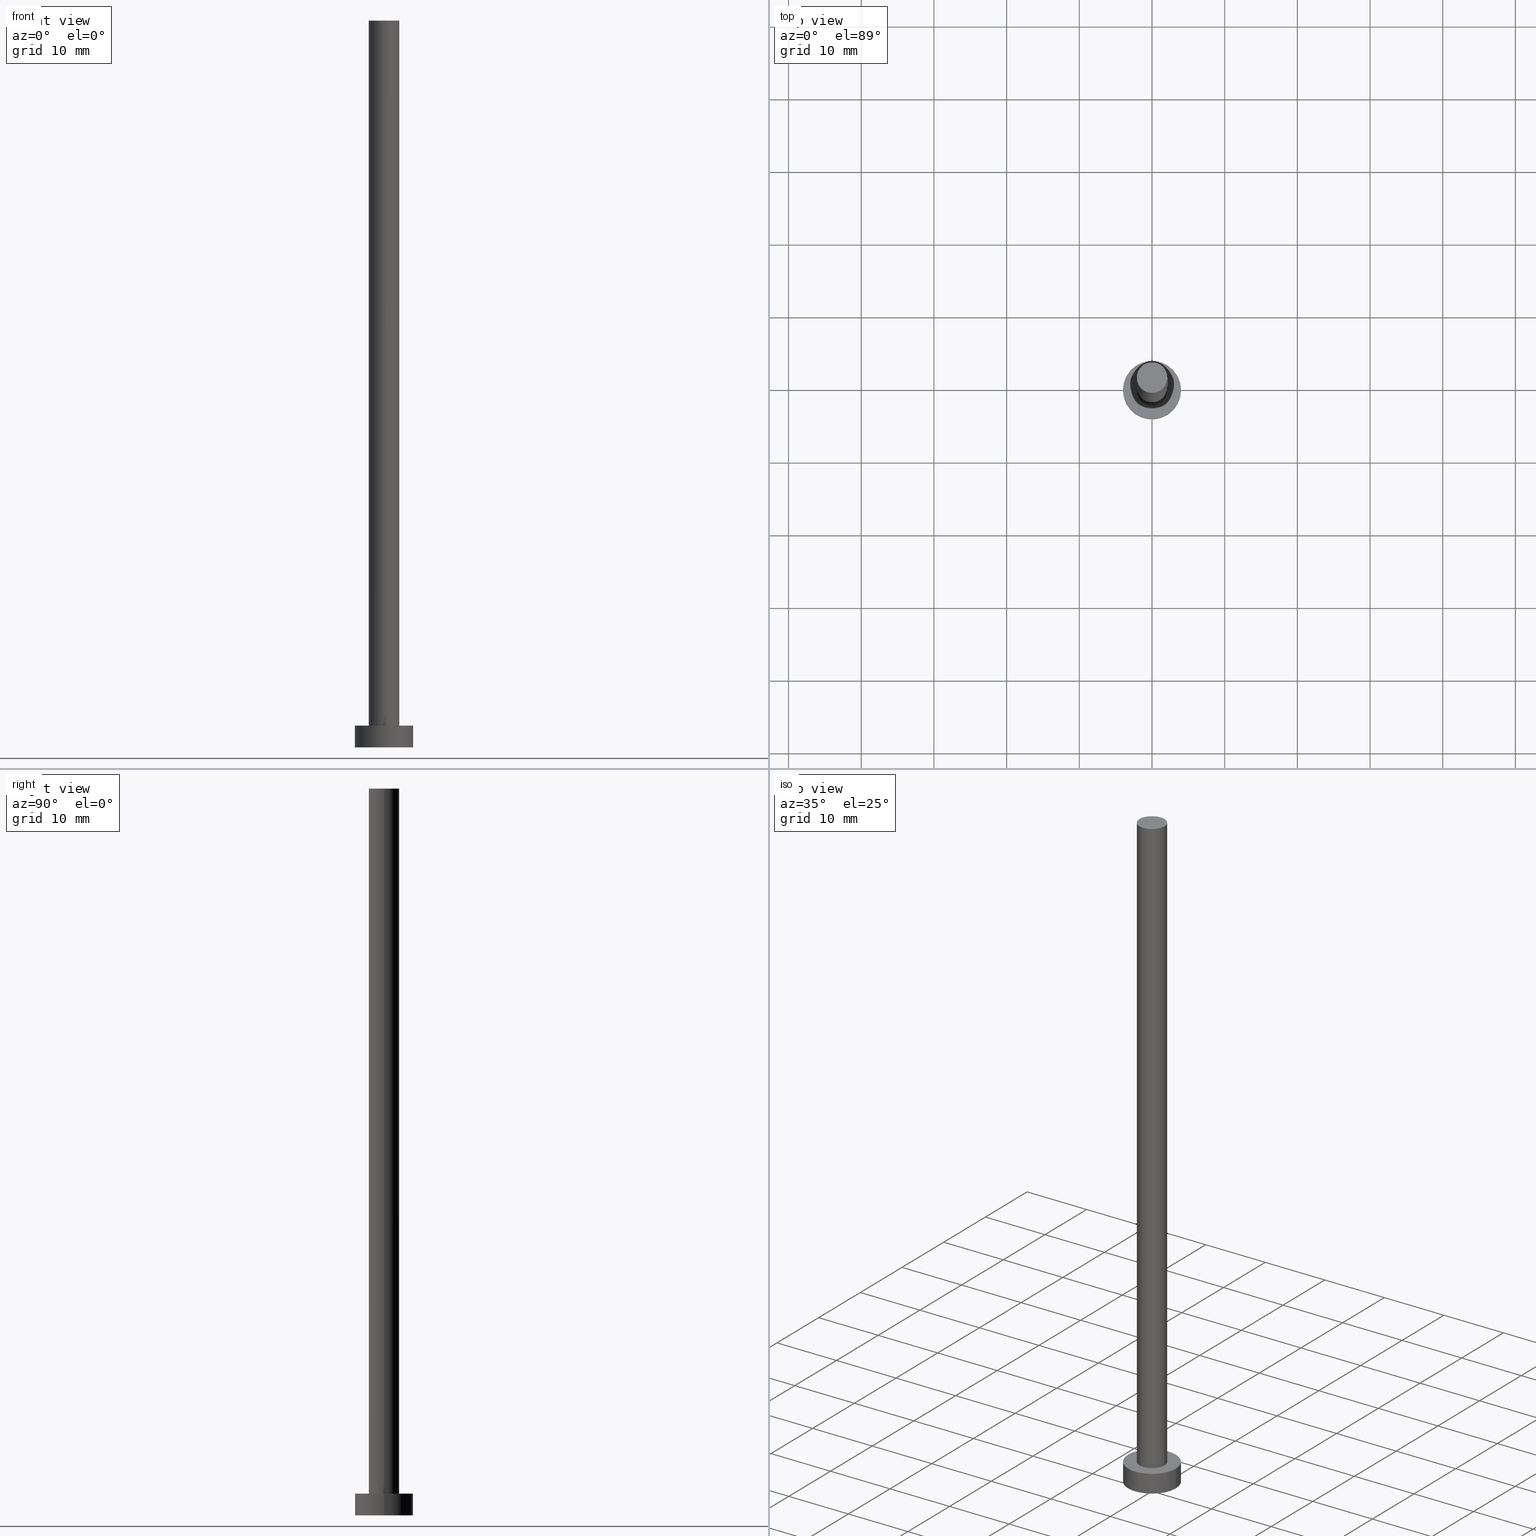
[diagram: canonical four-view strip — front | top / right | iso, engineering-drawing reading convention]
A machine part, canonical four-view strip (front | top / right | iso — engineering-drawing reading convention). The complete STEP part file that produces these views, byte-faithful:
ISO-10303-21;
HEADER;
FILE_DESCRIPTION (( 'STEP AP203' ),
    '1' );
FILE_NAME ('6c54.STEP',
    '2023-02-13T13:56:49',
    ( '' ),
    ( '' ),
    'SwSTEP 2.0',
    'SolidWorks 2019',
    '' );
FILE_SCHEMA (( 'CONFIG_CONTROL_DESIGN' ));
ENDSEC;

DATA;
#1 = CARTESIAN_POINT ( 'NONE',  ( 0.000000000000000000, 0.000000000000000000, 100.0000000000000000 ) ) ;
#2 = CARTESIAN_POINT ( 'NONE',  ( -2.100000000000000089, 0.000000000000000000, 100.0000000000000000 ) ) ;
#3 = ORIENTED_EDGE ( 'NONE', *, *, #5, .T. ) ;
#4 = AXIS2_PLACEMENT_3D ( 'NONE', #79, #110, #109 ) ;
#5 = EDGE_CURVE ( 'NONE', #100, #9, #98, .T. ) ;
#6 = CARTESIAN_POINT ( 'NONE',  ( 0.000000000000000000, 0.000000000000000000, 100.0000000000000000 ) ) ;
#7 = CARTESIAN_POINT ( 'NONE',  ( -4.000000000000000000, 0.000000000000000000, 3.000000000000000000 ) ) ;
#8 = CARTESIAN_POINT ( 'NONE',  ( 0.000000000000000000, 0.000000000000000000, 3.000000000000000000 ) ) ;
#9 = VERTEX_POINT ( 'NONE', #62 ) ;
#10 = ORIENTED_EDGE ( 'NONE', *, *, #180, .F. ) ;
#11 = APPROVAL ( #15, 'NEUR�EN�' ) ;
#12 = PERSON_AND_ORGANIZATION ( #95, #182 ) ;
#13 =( NAMED_UNIT ( * ) PLANE_ANGLE_UNIT ( ) SI_UNIT ( $, .RADIAN. ) );
#14 = CALENDAR_DATE ( 2023, 13, 2 ) ;
#15 = APPROVAL_STATUS ( 'not_yet_approved' ) ;
#16 = EDGE_CURVE ( 'NONE', #225, #96, #101, .T. ) ;
#17 = DIRECTION ( 'NONE',  ( -1.000000000000000000, 0.000000000000000000, 0.000000000000000000 ) ) ;
#18 = LOCAL_TIME ( 14, 56, 49.00000000000000000, #198 ) ;
#19 = APPROVAL_DATE_TIME ( #93, #50 ) ;
#20 = CARTESIAN_POINT ( 'NONE',  ( -2.100000000000000089, 0.000000000000000000, 3.000000000000000000 ) ) ;
#21 = LINE ( 'NONE', #86, #237 ) ;
#22 = ORIENTED_EDGE ( 'NONE', *, *, #47, .T. ) ;
#23 = DIRECTION ( 'NONE',  ( 0.000000000000000000, 0.000000000000000000, 1.000000000000000000 ) ) ;
#24 = CARTESIAN_POINT ( 'NONE',  ( -4.000000000000000000, 0.000000000000000000, 3.000000000000000000 ) ) ;
#25 = ORIENTED_EDGE ( 'NONE', *, *, #161, .T. ) ;
#26 = DIRECTION ( 'NONE',  ( 1.000000000000000000, 0.000000000000000000, 0.000000000000000000 ) ) ;
#27 = VERTEX_POINT ( 'NONE', #221 ) ;
#28 = UNCERTAINTY_MEASURE_WITH_UNIT (LENGTH_MEASURE( 1.000000000000000082E-05 ), #40, 'distance_accuracy_value', 'NONE');
#29 = APPROVAL ( #76, 'NEUR�EN�' ) ;
#30 = EDGE_LOOP ( 'NONE', ( #114, #119 ) ) ;
#31 = ADVANCED_BREP_SHAPE_REPRESENTATION ( '6c54', ( #185, #223 ), #251 ) ;
#32 = DATE_AND_TIME ( #14, #144 ) ;
#33 = CIRCLE ( 'NONE', #175, 2.100000000000000089 ) ;
#34 = LOCAL_TIME ( 14, 56, 49.00000000000000000, #208 ) ;
#35 = APPROVAL_DATE_TIME ( #194, #11 ) ;
#36 = PLANE ( 'NONE',  #4 ) ;
#37 = PERSON_AND_ORGANIZATION ( #95, #182 ) ;
#38 = CARTESIAN_POINT ( 'NONE',  ( 2.100000000000000089, 2.571758278209441464E-16, 100.0000000000000000 ) ) ;
#39 = CALENDAR_DATE ( 2023, 13, 2 ) ;
#40 =( LENGTH_UNIT ( ) NAMED_UNIT ( * ) SI_UNIT ( .MILLI., .METRE. ) );
#41 = CC_DESIGN_APPROVAL ( #50, ( #60 ) ) ;
#42 = DIRECTION ( 'NONE',  ( 0.000000000000000000, 0.000000000000000000, 1.000000000000000000 ) ) ;
#43 = DIRECTION ( 'NONE',  ( 0.000000000000000000, 0.000000000000000000, 1.000000000000000000 ) ) ;
#44 = CARTESIAN_POINT ( 'NONE',  ( 0.000000000000000000, 0.000000000000000000, 0.000000000000000000 ) ) ;
#45 = ORIENTED_EDGE ( 'NONE', *, *, #234, .T. ) ;
#46 = EDGE_LOOP ( 'NONE', ( #45, #25 ) ) ;
#47 = EDGE_CURVE ( 'NONE', #137, #200, #88, .T. ) ;
#48 = CARTESIAN_POINT ( 'NONE',  ( 2.100000000000000089, 2.571758278209441464E-16, 100.0000000000000000 ) ) ;
#49 = VECTOR ( 'NONE', #132, 1000.000000000000000 ) ;
#50 = APPROVAL ( #111, 'NEUR�EN�' ) ;
#51 = CIRCLE ( 'NONE', #142, 4.000000000000000000 ) ;
#52 = AXIS2_PLACEMENT_3D ( 'NONE', #44, #67, #220 ) ;
#53 = DIRECTION ( 'NONE',  ( 0.000000000000000000, 0.000000000000000000, 1.000000000000000000 ) ) ;
#54 = PERSON_AND_ORGANIZATION_ROLE ( 'classification_officer' ) ;
#55 = DIRECTION ( 'NONE',  ( 1.000000000000000000, 0.000000000000000000, 0.000000000000000000 ) ) ;
#56 = ADVANCED_FACE ( 'NONE', ( #176 ), #147, .T. ) ;
#57 = PERSON_AND_ORGANIZATION ( #95, #182 ) ;
#58 = DIRECTION ( 'NONE',  ( 1.000000000000000000, 0.000000000000000000, 0.000000000000000000 ) ) ;
#59 = CLOSED_SHELL ( 'NONE', ( #140, #56, #228, #189, #231, #249, #105 ) ) ;
#60 = PRODUCT_DEFINITION_FORMATION_WITH_SPECIFIED_SOURCE ( 'LIBOVOLN�', '', #201, .NOT_KNOWN. ) ;
#61 = CARTESIAN_POINT ( 'NONE',  ( 0.000000000000000000, 0.000000000000000000, 100.0000000000000000 ) ) ;
#62 = CARTESIAN_POINT ( 'NONE',  ( 2.100000000000000089, 2.571758278209441464E-16, 3.000000000000000000 ) ) ;
#63 = DIRECTION ( 'NONE',  ( -0.000000000000000000, -0.000000000000000000, -1.000000000000000000 ) ) ;
#64 = ORIENTED_EDGE ( 'NONE', *, *, #161, .F. ) ;
#65 = DIRECTION ( 'NONE',  ( 1.000000000000000000, 0.000000000000000000, 0.000000000000000000 ) ) ;
#66 = ORIENTED_EDGE ( 'NONE', *, *, #47, .F. ) ;
#67 = DIRECTION ( 'NONE',  ( 0.000000000000000000, 0.000000000000000000, 1.000000000000000000 ) ) ;
#68 = ORIENTED_EDGE ( 'NONE', *, *, #184, .F. ) ;
#69 = LOCAL_TIME ( 14, 56, 49.00000000000000000, #94 ) ;
#70 = VECTOR ( 'NONE', #121, 1000.000000000000000 ) ;
#71 = APPROVAL_PERSON_ORGANIZATION ( #230, #29, #145 ) ;
#72 = DATE_AND_TIME ( #164, #34 ) ;
#73 = CC_DESIGN_PERSON_AND_ORGANIZATION_ASSIGNMENT ( #12, #252, ( #201 ) ) ;
#74 = CARTESIAN_POINT ( 'NONE',  ( 0.000000000000000000, 0.000000000000000000, 0.000000000000000000 ) ) ;
#75 = LOCAL_TIME ( 14, 56, 49.00000000000000000, #170 ) ;
#76 = APPROVAL_STATUS ( 'not_yet_approved' ) ;
#77 = CARTESIAN_POINT ( 'NONE',  ( 4.000000000000000000, 4.898587196589412829E-16, 3.000000000000000000 ) ) ;
#78 = AXIS2_PLACEMENT_3D ( 'NONE', #61, #243, #65 ) ;
#79 = CARTESIAN_POINT ( 'NONE',  ( 0.000000000000000000, 0.000000000000000000, 100.0000000000000000 ) ) ;
#80 = PERSON_AND_ORGANIZATION ( #95, #182 ) ;
#81 = EDGE_CURVE ( 'NONE', #27, #247, #186, .T. ) ;
#82 = CARTESIAN_POINT ( 'NONE',  ( 0.000000000000000000, 0.000000000000000000, 3.000000000000000000 ) ) ;
#83 = AXIS2_PLACEMENT_3D ( 'NONE', #219, #43, #115 ) ;
#84 = EDGE_LOOP ( 'NONE', ( #68, #120 ) ) ;
#85 = ORIENTED_EDGE ( 'NONE', *, *, #5, .F. ) ;
#86 = CARTESIAN_POINT ( 'NONE',  ( 4.000000000000000000, 4.898587196589412829E-16, 3.000000000000000000 ) ) ;
#87 = ORIENTED_EDGE ( 'NONE', *, *, #16, .T. ) ;
#88 = CIRCLE ( 'NONE', #83, 4.000000000000000000 ) ;
#89 = ORIENTED_EDGE ( 'NONE', *, *, #206, .F. ) ;
#90 =( NAMED_UNIT ( * ) SI_UNIT ( $, .STERADIAN. ) SOLID_ANGLE_UNIT ( ) );
#91 = CC_DESIGN_DATE_AND_TIME_ASSIGNMENT ( #72, #183, ( #130 ) ) ;
#92 = PERSON_AND_ORGANIZATION_ROLE ( 'design_supplier' ) ;
#93 = DATE_AND_TIME ( #39, #69 ) ;
#94 = COORDINATED_UNIVERSAL_TIME_OFFSET ( 1, 0, .AHEAD. ) ;
#95 = PERSON ( 'NEUR�EN�', 'NEUR�EN�', 'NEUR�EN�', ('NEUR�EN�'), ('NEUR�EN�'), ('NEUR�EN�') ) ;
#96 = VERTEX_POINT ( 'NONE', #20 ) ;
#97 = DIRECTION ( 'NONE',  ( 0.000000000000000000, 0.000000000000000000, 1.000000000000000000 ) ) ;
#98 = LINE ( 'NONE', #48, #70 ) ;
#99 = CC_DESIGN_DATE_AND_TIME_ASSIGNMENT ( #151, #192, ( #178 ) ) ;
#100 = VERTEX_POINT ( 'NONE', #38 ) ;
#101 = LINE ( 'NONE', #179, #49 ) ;
#102 = DIRECTION ( 'NONE',  ( -1.000000000000000000, 0.000000000000000000, 0.000000000000000000 ) ) ;
#103 = CIRCLE ( 'NONE', #254, 2.100000000000000089 ) ;
#104 = APPROVAL_PERSON_ORGANIZATION ( #80, #50, #190 ) ;
#105 = ADVANCED_FACE ( 'NONE', ( #253 ), #36, .T. ) ;
#106 = CYLINDRICAL_SURFACE ( 'NONE', #123, 2.100000000000000089 ) ;
#107 = DIRECTION ( 'NONE',  ( -0.000000000000000000, -0.000000000000000000, -1.000000000000000000 ) ) ;
#108 = PERSON_AND_ORGANIZATION ( #95, #182 ) ;
#109 = DIRECTION ( 'NONE',  ( 1.000000000000000000, 0.000000000000000000, -0.000000000000000000 ) ) ;
#110 = DIRECTION ( 'NONE',  ( 0.000000000000000000, 0.000000000000000000, 1.000000000000000000 ) ) ;
#111 = APPROVAL_STATUS ( 'not_yet_approved' ) ;
#112 = AXIS2_PLACEMENT_3D ( 'NONE', #193, #107, #213 ) ;
#113 = CC_DESIGN_APPROVAL ( #29, ( #130 ) ) ;
#114 = ORIENTED_EDGE ( 'NONE', *, *, #81, .F. ) ;
#115 = DIRECTION ( 'NONE',  ( 1.000000000000000000, 0.000000000000000000, 0.000000000000000000 ) ) ;
#116 = CC_DESIGN_PERSON_AND_ORGANIZATION_ASSIGNMENT ( #57, #92, ( #60 ) ) ;
#117 = APPLICATION_CONTEXT ( 'configuration controlled 3d designs of mechanical parts and assemblies' ) ;
#118 = DIRECTION ( 'NONE',  ( 0.000000000000000000, 0.000000000000000000, 1.000000000000000000 ) ) ;
#119 = ORIENTED_EDGE ( 'NONE', *, *, #149, .F. ) ;
#120 = ORIENTED_EDGE ( 'NONE', *, *, #196, .F. ) ;
#121 = DIRECTION ( 'NONE',  ( -0.000000000000000000, -0.000000000000000000, -1.000000000000000000 ) ) ;
#122 = DIRECTION ( 'NONE',  ( 1.000000000000000000, 0.000000000000000000, 0.000000000000000000 ) ) ;
#123 = AXIS2_PLACEMENT_3D ( 'NONE', #181, #165, #102 ) ;
#124 = COORDINATED_UNIVERSAL_TIME_OFFSET ( 1, 0, .AHEAD. ) ;
#125 = CIRCLE ( 'NONE', #222, 4.000000000000000000 ) ;
#126 = CALENDAR_DATE ( 2023, 13, 2 ) ;
#127 = CARTESIAN_POINT ( 'NONE',  ( 0.000000000000000000, 0.000000000000000000, 0.000000000000000000 ) ) ;
#128 = SECURITY_CLASSIFICATION_LEVEL ( 'unclassified' ) ;
#129 = PLANE ( 'NONE',  #245 ) ;
#130 = PRODUCT_DEFINITION ( 'NEZN�M�', '', #60, #138 ) ;
#131 = DIRECTION ( 'NONE',  ( -1.000000000000000000, 0.000000000000000000, 0.000000000000000000 ) ) ;
#132 = DIRECTION ( 'NONE',  ( -0.000000000000000000, -0.000000000000000000, -1.000000000000000000 ) ) ;
#133 = PLANE ( 'NONE',  #52 ) ;
#134 = AXIS2_PLACEMENT_3D ( 'NONE', #238, #97, #26 ) ;
#135 = EDGE_LOOP ( 'NONE', ( #139, #22 ) ) ;
#136 = FACE_OUTER_BOUND ( 'NONE', #162, .T. ) ;
#137 = VERTEX_POINT ( 'NONE', #77 ) ;
#138 = DESIGN_CONTEXT ( 'detailed design', #117, 'design' ) ;
#139 = ORIENTED_EDGE ( 'NONE', *, *, #180, .T. ) ;
#140 = ADVANCED_FACE ( 'NONE', ( #191 ), #148, .T. ) ;
#141 = APPROVAL_DATE_TIME ( #32, #29 ) ;
#142 = AXIS2_PLACEMENT_3D ( 'NONE', #199, #118, #58 ) ;
#143 = DIRECTION ( 'NONE',  ( 0.000000000000000000, 0.000000000000000000, 1.000000000000000000 ) ) ;
#144 = LOCAL_TIME ( 14, 56, 49.00000000000000000, #124 ) ;
#145 = APPROVAL_ROLE ( '' ) ;
#146 = CC_DESIGN_PERSON_AND_ORGANIZATION_ASSIGNMENT ( #108, #187, ( #130 ) ) ;
#147 = CYLINDRICAL_SURFACE ( 'NONE', #112, 4.000000000000000000 ) ;
#148 = CYLINDRICAL_SURFACE ( 'NONE', #211, 2.100000000000000089 ) ;
#149 = EDGE_CURVE ( 'NONE', #247, #27, #125, .T. ) ;
#150 = DIRECTION ( 'NONE',  ( 1.000000000000000000, 0.000000000000000000, 0.000000000000000000 ) ) ;
#151 = DATE_AND_TIME ( #154, #18 ) ;
#152 = FACE_OUTER_BOUND ( 'NONE', #30, .T. ) ;
#153 = ORIENTED_EDGE ( 'NONE', *, *, #234, .F. ) ;
#154 = CALENDAR_DATE ( 2023, 13, 2 ) ;
#155 = DIRECTION ( 'NONE',  ( 1.000000000000000000, 0.000000000000000000, 0.000000000000000000 ) ) ;
#156 = EDGE_LOOP ( 'NONE', ( #158, #10, #242, #244 ) ) ;
#157 = LINE ( 'NONE', #7, #188 ) ;
#158 = ORIENTED_EDGE ( 'NONE', *, *, #209, .F. ) ;
#159 = FACE_OUTER_BOUND ( 'NONE', #156, .T. ) ;
#160 = CIRCLE ( 'NONE', #134, 2.100000000000000089 ) ;
#161 = EDGE_CURVE ( 'NONE', #100, #225, #103, .T. ) ;
#162 = EDGE_LOOP ( 'NONE', ( #85, #153, #87, #197 ) ) ;
#163 = CC_DESIGN_PERSON_AND_ORGANIZATION_ASSIGNMENT ( #255, #217, ( #60 ) ) ;
#164 = CALENDAR_DATE ( 2023, 13, 2 ) ;
#165 = DIRECTION ( 'NONE',  ( -0.000000000000000000, -0.000000000000000000, -1.000000000000000000 ) ) ;
#166 = APPLICATION_PROTOCOL_DEFINITION ( 'international standard', 'config_control_design', 1994, #117 ) ;
#167 = PRODUCT_RELATED_PRODUCT_CATEGORY ( 'detail', '', ( #201 ) ) ;
#168 = APPROVAL_PERSON_ORGANIZATION ( #212, #11, #214 ) ;
#169 = DIRECTION ( 'NONE',  ( 0.000000000000000000, 0.000000000000000000, 1.000000000000000000 ) ) ;
#170 = COORDINATED_UNIVERSAL_TIME_OFFSET ( 1, 0, .AHEAD. ) ;
#171 = CARTESIAN_POINT ( 'NONE',  ( 0.000000000000000000, 0.000000000000000000, 0.000000000000000000 ) ) ;
#172 = DIRECTION ( 'NONE',  ( -0.000000000000000000, -0.000000000000000000, -1.000000000000000000 ) ) ;
#173 = ORIENTED_EDGE ( 'NONE', *, *, #196, .T. ) ;
#174 = AXIS2_PLACEMENT_3D ( 'NONE', #82, #63, #131 ) ;
#175 = AXIS2_PLACEMENT_3D ( 'NONE', #8, #23, #241 ) ;
#176 = FACE_OUTER_BOUND ( 'NONE', #203, .T. ) ;
#177 = ORIENTED_EDGE ( 'NONE', *, *, #209, .T. ) ;
#178 = SECURITY_CLASSIFICATION ( '', '', #128 ) ;
#179 = CARTESIAN_POINT ( 'NONE',  ( -2.100000000000000089, 0.000000000000000000, 100.0000000000000000 ) ) ;
#180 = EDGE_CURVE ( 'NONE', #200, #137, #51, .T. ) ;
#181 = CARTESIAN_POINT ( 'NONE',  ( 0.000000000000000000, 0.000000000000000000, 100.0000000000000000 ) ) ;
#182 = ORGANIZATION ( 'NEUR�EN�', 'NEUR�EN�', '' ) ;
#183 = DATE_TIME_ROLE ( 'creation_date' ) ;
#184 = EDGE_CURVE ( 'NONE', #96, #9, #33, .T. ) ;
#185 = MANIFOLD_SOLID_BREP ( 'P�idat vysunut�m3', #59 ) ;
#186 = CIRCLE ( 'NONE', #227, 4.000000000000000000 ) ;
#187 = PERSON_AND_ORGANIZATION_ROLE ( 'creator' ) ;
#188 = VECTOR ( 'NONE', #195, 1000.000000000000000 ) ;
#189 = ADVANCED_FACE ( 'NONE', ( #235, #204 ), #129, .T. ) ;
#190 = APPROVAL_ROLE ( '' ) ;
#191 = FACE_OUTER_BOUND ( 'NONE', #226, .T. ) ;
#192 = DATE_TIME_ROLE ( 'classification_date' ) ;
#193 = CARTESIAN_POINT ( 'NONE',  ( 0.000000000000000000, 0.000000000000000000, 3.000000000000000000 ) ) ;
#194 = DATE_AND_TIME ( #126, #75 ) ;
#195 = DIRECTION ( 'NONE',  ( -0.000000000000000000, -0.000000000000000000, -1.000000000000000000 ) ) ;
#196 = EDGE_CURVE ( 'NONE', #9, #96, #160, .T. ) ;
#197 = ORIENTED_EDGE ( 'NONE', *, *, #184, .T. ) ;
#198 = COORDINATED_UNIVERSAL_TIME_OFFSET ( 1, 0, .AHEAD. ) ;
#199 = CARTESIAN_POINT ( 'NONE',  ( 0.000000000000000000, 0.000000000000000000, 3.000000000000000000 ) ) ;
#200 = VERTEX_POINT ( 'NONE', #24 ) ;
#201 = PRODUCT ( '6c54', '6c54', '', ( #250 ) ) ;
#202 = DIRECTION ( 'NONE',  ( 1.000000000000000000, 0.000000000000000000, -0.000000000000000000 ) ) ;
#203 = EDGE_LOOP ( 'NONE', ( #66, #177, #239, #89 ) ) ;
#204 = FACE_OUTER_BOUND ( 'NONE', #135, .T. ) ;
#205 = ORIENTED_EDGE ( 'NONE', *, *, #16, .F. ) ;
#206 = EDGE_CURVE ( 'NONE', #200, #27, #157, .T. ) ;
#207 = APPLICATION_CONTEXT ( 'configuration controlled 3d designs of mechanical parts and assemblies' ) ;
#208 = COORDINATED_UNIVERSAL_TIME_OFFSET ( 1, 0, .AHEAD. ) ;
#209 = EDGE_CURVE ( 'NONE', #137, #247, #21, .T. ) ;
#210 = CC_DESIGN_APPROVAL ( #11, ( #178 ) ) ;
#211 = AXIS2_PLACEMENT_3D ( 'NONE', #1, #232, #17 ) ;
#212 = PERSON_AND_ORGANIZATION ( #95, #182 ) ;
#213 = DIRECTION ( 'NONE',  ( -1.000000000000000000, 0.000000000000000000, 0.000000000000000000 ) ) ;
#214 = APPROVAL_ROLE ( '' ) ;
#215 = CC_DESIGN_SECURITY_CLASSIFICATION ( #178, ( #60 ) ) ;
#216 = CARTESIAN_POINT ( 'NONE',  ( 0.000000000000000000, 0.000000000000000000, 3.000000000000000000 ) ) ;
#217 = PERSON_AND_ORGANIZATION_ROLE ( 'creator' ) ;
#218 = DIRECTION ( 'NONE',  ( 0.000000000000000000, 0.000000000000000000, 1.000000000000000000 ) ) ;
#219 = CARTESIAN_POINT ( 'NONE',  ( 0.000000000000000000, 0.000000000000000000, 3.000000000000000000 ) ) ;
#220 = DIRECTION ( 'NONE',  ( 1.000000000000000000, 0.000000000000000000, -0.000000000000000000 ) ) ;
#221 = CARTESIAN_POINT ( 'NONE',  ( -4.000000000000000000, 0.000000000000000000, 0.000000000000000000 ) ) ;
#222 = AXIS2_PLACEMENT_3D ( 'NONE', #171, #169, #150 ) ;
#223 = AXIS2_PLACEMENT_3D ( 'NONE', #74, #143, #122 ) ;
#224 = CARTESIAN_POINT ( 'NONE',  ( 4.000000000000000000, 4.898587196589412829E-16, 0.000000000000000000 ) ) ;
#225 = VERTEX_POINT ( 'NONE', #2 ) ;
#226 = EDGE_LOOP ( 'NONE', ( #64, #3, #173, #205 ) ) ;
#227 = AXIS2_PLACEMENT_3D ( 'NONE', #127, #53, #55 ) ;
#228 = ADVANCED_FACE ( 'NONE', ( #159 ), #246, .T. ) ;
#229 = APPLICATION_PROTOCOL_DEFINITION ( 'international standard', 'config_control_design', 1994, #207 ) ;
#230 = PERSON_AND_ORGANIZATION ( #95, #182 ) ;
#231 = ADVANCED_FACE ( 'NONE', ( #152 ), #133, .F. ) ;
#232 = DIRECTION ( 'NONE',  ( -0.000000000000000000, -0.000000000000000000, -1.000000000000000000 ) ) ;
#233 = CIRCLE ( 'NONE', #78, 2.100000000000000089 ) ;
#234 = EDGE_CURVE ( 'NONE', #225, #100, #233, .T. ) ;
#235 = FACE_BOUND ( 'NONE', #84, .T. ) ;
#236 = SHAPE_DEFINITION_REPRESENTATION ( #248, #31 ) ;
#237 = VECTOR ( 'NONE', #172, 1000.000000000000000 ) ;
#238 = CARTESIAN_POINT ( 'NONE',  ( 0.000000000000000000, 0.000000000000000000, 3.000000000000000000 ) ) ;
#239 = ORIENTED_EDGE ( 'NONE', *, *, #149, .T. ) ;
#240 = CC_DESIGN_PERSON_AND_ORGANIZATION_ASSIGNMENT ( #37, #54, ( #178 ) ) ;
#241 = DIRECTION ( 'NONE',  ( 1.000000000000000000, 0.000000000000000000, 0.000000000000000000 ) ) ;
#242 = ORIENTED_EDGE ( 'NONE', *, *, #206, .T. ) ;
#243 = DIRECTION ( 'NONE',  ( 0.000000000000000000, 0.000000000000000000, 1.000000000000000000 ) ) ;
#244 = ORIENTED_EDGE ( 'NONE', *, *, #81, .T. ) ;
#245 = AXIS2_PLACEMENT_3D ( 'NONE', #216, #42, #202 ) ;
#246 = CYLINDRICAL_SURFACE ( 'NONE', #174, 4.000000000000000000 ) ;
#247 = VERTEX_POINT ( 'NONE', #224 ) ;
#248 = PRODUCT_DEFINITION_SHAPE ( 'NONE', 'NONE',  #130 ) ;
#249 = ADVANCED_FACE ( 'NONE', ( #136 ), #106, .T. ) ;
#250 = MECHANICAL_CONTEXT ( 'NONE', #207, 'mechanical' ) ;
#251 =( GEOMETRIC_REPRESENTATION_CONTEXT ( 3 ) GLOBAL_UNCERTAINTY_ASSIGNED_CONTEXT ( ( #28 ) ) GLOBAL_UNIT_ASSIGNED_CONTEXT ( ( #40, #13, #90 ) ) REPRESENTATION_CONTEXT ( 'NONE', 'WORKASPACE' ) );
#252 = PERSON_AND_ORGANIZATION_ROLE ( 'design_owner' ) ;
#253 = FACE_OUTER_BOUND ( 'NONE', #46, .T. ) ;
#254 = AXIS2_PLACEMENT_3D ( 'NONE', #6, #218, #155 ) ;
#255 = PERSON_AND_ORGANIZATION ( #95, #182 ) ;
ENDSEC;
END-ISO-10303-21;
